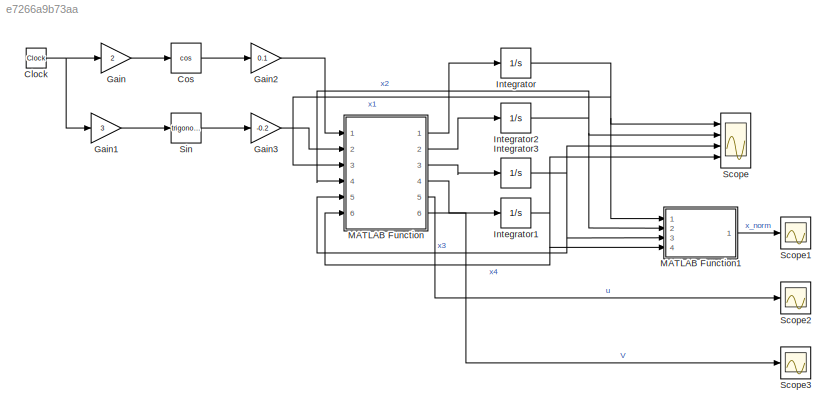
MODEL slx_e7266a9b73aa
KIND model
CONFIG AbsTol = auto
CONFIG EnableMultiTasking = off
CONFIG FixedStep = 0.0001
CONFIG MaxStep = auto
CONFIG MinStep = auto
CONFIG RelTol = 1e-3
CONFIG SampleTimeConstraint = Unconstrained
CONFIG Solver = FixedStepAuto
CONFIG SolverName = FixedStepAuto
CONFIG StartTime = 0.0
CONFIG StopTime = 10.0
BLOCK [Clock] Clock
BLOCK [Trigonometry] Cos
  Operator = cos
  Ports = [1, 1]
BLOCK [Gain] Gain
  Gain = 2
BLOCK [Gain] Gain1
  Gain = 3
BLOCK [Gain] Gain2
  Gain = 0.1
BLOCK [Gain] Gain3
  Gain = -0.2
BLOCK [Integrator] Integrator
  InitialCondition = 5
  Ports = [1, 1]
BLOCK [Integrator] Integrator1
  Ports = [1, 1]
BLOCK [Integrator] Integrator2
  Ports = [1, 1]
BLOCK [Integrator] Integrator3
  InitialCondition = -6
  Ports = [1, 1]
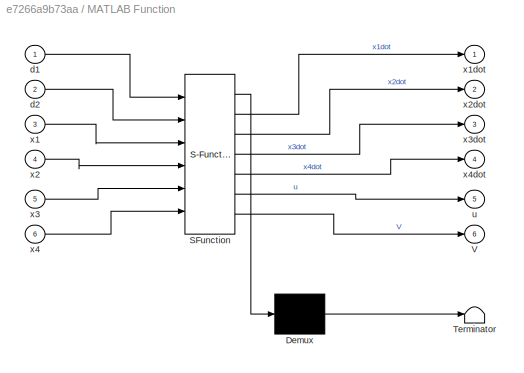
BLOCK [SubSystem] MATLAB Function
  ErrorFcn = Stateflow.Translate.translate
  PermitHierarchicalResolution = ExplicitOnly
  Ports = [6, 6]
  RequestExecContextInheritance = off
  SFBlockType = MATLAB Function
  TreatAsAtomicUnit = on
BLOCK [Demux] MATLAB Function/ Demux 
  Outputs = 1
  Ports = [1, 1]
BLOCK [S-Function] MATLAB Function/ SFunction 
  EnableBusSupport = on
  FunctionName = sf_sfun
  Parameters = A,E,K,P,alpha,b
  PortCounts = [6 7]
  Ports = [6, 7]
  SFcnIsStateOwnerBlock = off
  SFunctionDeploymentMode = off
  Tag = Stateflow S-Function 2
BLOCK [Terminator] MATLAB Function/ Terminator 
BLOCK [Outport] MATLAB Function/V
  Port = 6
BLOCK [Inport] MATLAB Function/d1
BLOCK [Inport] MATLAB Function/d2
  Port = 2
BLOCK [Outport] MATLAB Function/u
  Port = 5
BLOCK [Inport] MATLAB Function/x1
  Port = 3
BLOCK [Outport] MATLAB Function/x1dot
BLOCK [Inport] MATLAB Function/x2
  Port = 4
BLOCK [Outport] MATLAB Function/x2dot
  Port = 2
BLOCK [Inport] MATLAB Function/x3
  Port = 5
BLOCK [Outport] MATLAB Function/x3dot
  Port = 3
BLOCK [Inport] MATLAB Function/x4
  Port = 6
BLOCK [Outport] MATLAB Function/x4dot
  Port = 4
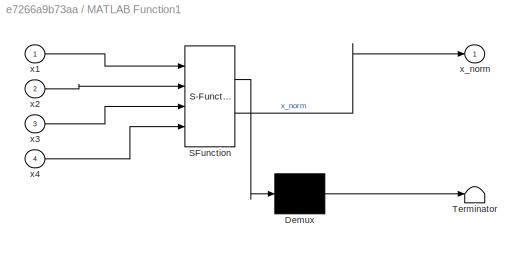
BLOCK [SubSystem] MATLAB Function1
  ErrorFcn = Stateflow.Translate.translate
  PermitHierarchicalResolution = ExplicitOnly
  Ports = [4, 1]
  RequestExecContextInheritance = off
  SFBlockType = MATLAB Function
  TreatAsAtomicUnit = on
BLOCK [Demux] MATLAB Function1/ Demux 
  Outputs = 1
  Ports = [1, 1]
BLOCK [S-Function] MATLAB Function1/ SFunction 
  EnableBusSupport = on
  FunctionName = sf_sfun
  PortCounts = [4 2]
  Ports = [4, 2]
  SFcnIsStateOwnerBlock = off
  SFunctionDeploymentMode = off
  Tag = Stateflow S-Function 1
BLOCK [Terminator] MATLAB Function1/ Terminator 
BLOCK [Inport] MATLAB Function1/x1
BLOCK [Inport] MATLAB Function1/x2
  Port = 2
BLOCK [Inport] MATLAB Function1/x3
  Port = 3
BLOCK [Inport] MATLAB Function1/x4
  Port = 4
BLOCK [Outport] MATLAB Function1/x_norm
BLOCK [Scope] Scope
  Floating = off
  NumInputPorts = 4
  Ports = [4]
  ScopeSpecificationString = Simulink.scopes.TimeScopeBlockCfg('CurrentConfiguration', extmgr.ConfigurationSet(extmgr.Configuration('Core','General UI',true),extmgr.Configuration('Core','Source UI',true),extmgr.Configuration('Sources','WiredSimulink',true),extmgr.Configuration('Visuals','Time Domain',true,'SerializedDisplays',{struct('MinYLimReal','-11.10989','MaxYLimReal','7.80198','YLabelReal','','MinYLimMag','0.00000','Max...<+1370ch>
BLOCK [Scope] Scope1
  Floating = off
  NumInputPorts = 1
  Ports = [1]
  ScopeSpecificationString = Simulink.scopes.TimeScopeBlockCfg('CurrentConfiguration', extmgr.ConfigurationSet(extmgr.Configuration('Core','General UI',true,'FigureColor',[1 1 1]),extmgr.Configuration('Core','Source UI',true),extmgr.Configuration('Sources','WiredSimulink',true,'DataLoggingVariableName','ScopeData1'),extmgr.Configuration('Visuals','Time Domain',true,'SerializedDisplays',{struct('MinYLimReal','-1.41375','MaxYLi...<+1516ch>
BLOCK [Scope] Scope2
  Floating = off
  NumInputPorts = 1
  Ports = [1]
  ScopeSpecificationString = Simulink.scopes.TimeScopeBlockCfg('CurrentConfiguration', extmgr.ConfigurationSet(extmgr.Configuration('Core','General UI',true,'FigureColor',[1 1 1]),extmgr.Configuration('Core','Source UI',true),extmgr.Configuration('Sources','WiredSimulink',true,'DataLoggingVariableName','ScopeData2'),extmgr.Configuration('Visuals','Time Domain',true,'SerializedDisplays',{struct('MinYLimReal','-114.51967','MaxY...<+1519ch>
BLOCK [Scope] Scope3
  Floating = off
  NumInputPorts = 1
  Ports = [1]
  ScopeSpecificationString = Simulink.scopes.TimeScopeBlockCfg('CurrentConfiguration', extmgr.ConfigurationSet(extmgr.Configuration('Core','General UI',true,'FigureColor',[1 1 1]),extmgr.Configuration('Core','Source UI',true),extmgr.Configuration('Sources','WiredSimulink',true,'DataLoggingVariableName','ScopeData3'),extmgr.Configuration('Visuals','Time Domain',true,'SerializedDisplays',{struct('MinYLimReal','-8.19666','MaxYLi...<+1511ch>
BLOCK [Trigonometry] Sin
  Ports = [1, 1]
NET Clock:1 -> Gain1:1, Gain:1
LINE Cos:1 -> Gain2:1
LINE Gain1:1 -> Sin:1
LINE Gain2:1 -> MATLAB Function:1
LINE Gain3:1 -> MATLAB Function:2
LINE Gain:1 -> Cos:1
NET Integrator1:1 -> MATLAB Function1:4, MATLAB Function:6, Scope:4
NET Integrator2:1 -> MATLAB Function1:2, MATLAB Function:4, Scope:2
NET Integrator3:1 -> MATLAB Function1:3, MATLAB Function:5, Scope:3
NET Integrator:1 -> MATLAB Function1:1, MATLAB Function:3, Scope:1
LINE MATLAB Function1:1 -> Scope1:1
LINE MATLAB Function:1 -> Integrator:1
LINE MATLAB Function:2 -> Integrator2:1
LINE MATLAB Function:3 -> Integrator3:1
LINE MATLAB Function:4 -> Integrator1:1
LINE MATLAB Function:5 -> Scope2:1
LINE MATLAB Function:6 -> Scope3:1
LINE Sin:1 -> Gain3:1
note: NET lines group one-source signal fan-out (src -> all destinations, sorted); 1:1 wires keep LINE
CHART MATLAB Function1 states=1 transitions=1
  STATE_LABEL 'eML_blk_kernel()'
  STATE_LABEL "SCRIPT:\nfunction x_norm = fcn(x1,x2,x3,x4)\n\nX = [x1 x2 x3 x4]';\nx_norm = norm(X);\n"
CHART MATLAB Function states=1 transitions=1
  STATE_LABEL 'eML_blk_kernel()'
  STATE_LABEL "SCRIPT:\nfunction [x1dot,x2dot,x3dot,x4dot,u,V] = fcn(d1, d2, x1,x2,x3,x4, E, b, A,alpha, P,K)\nd = [d1;d2];\nX = [x1 x2 x3 x4]';\nu = -K*X-alpha*b'*P*X/norm(b'*P*X);\nx_dot = A*X+b*u+E*d;\n\nV = 1/2*X'*P*X;\nx1dot = x_dot(1);\nx2dot = x_dot(2);\nx3dot = x_dot(3);\nx4dot= x_dot(4);"
CHART  states=0 transitions=0
CHART  states=0 transitions=0
